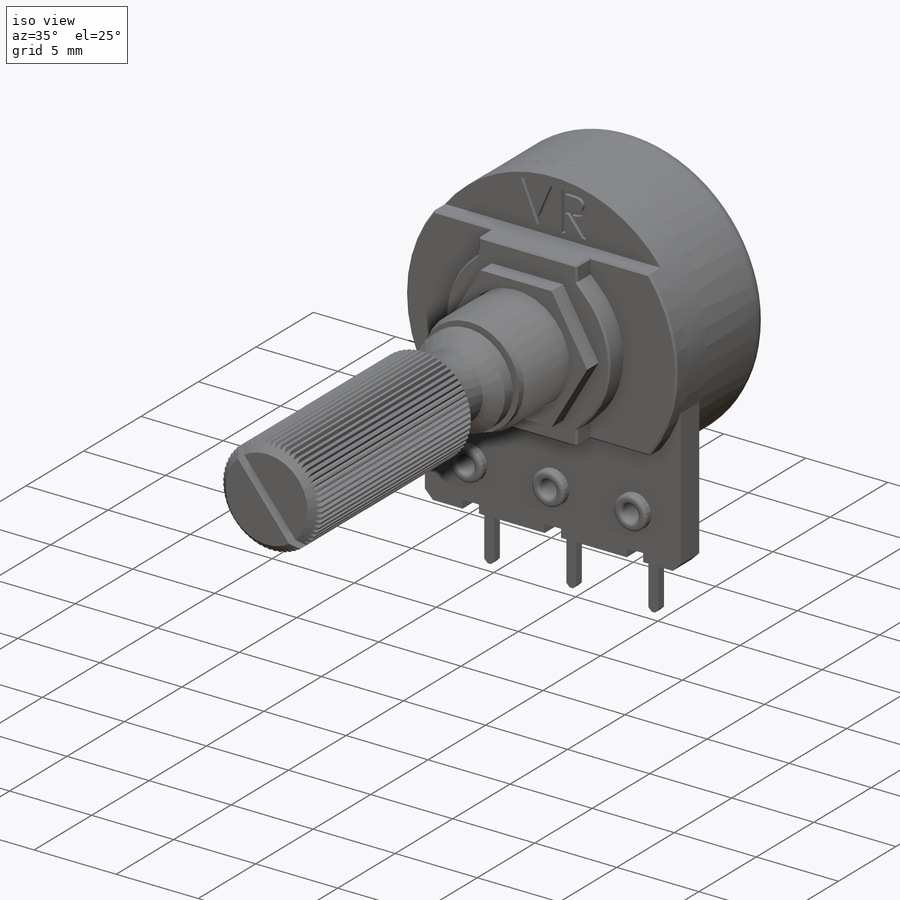
[diagram: iso view]
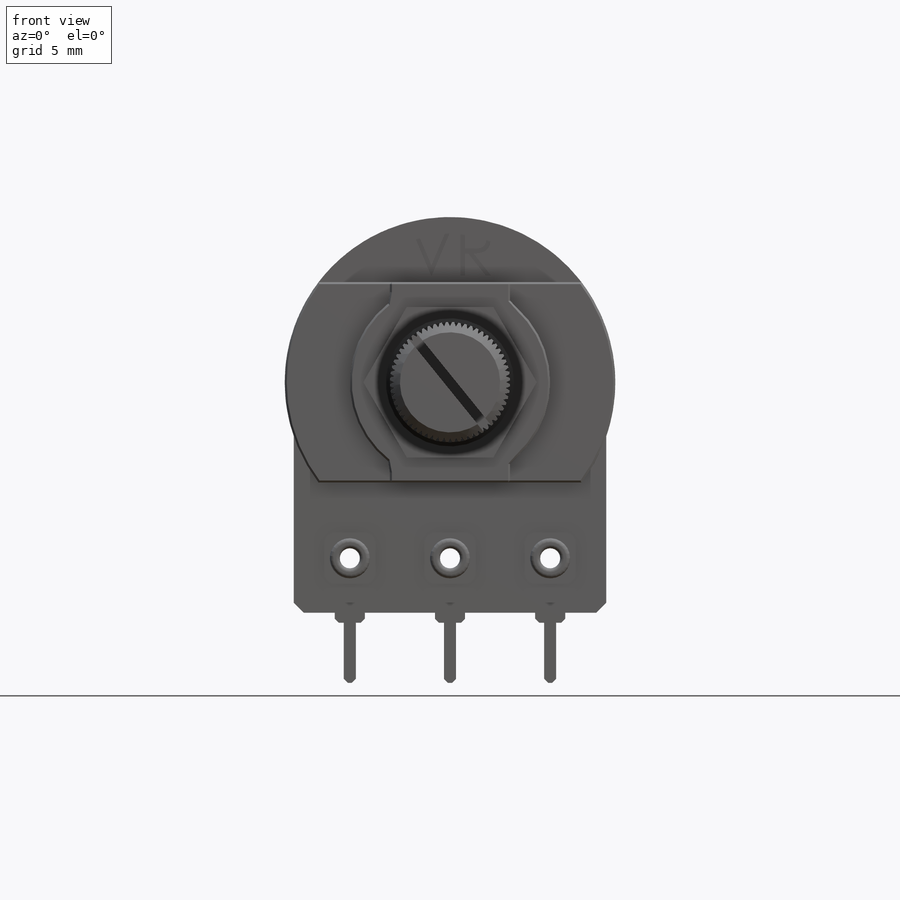
[diagram: front view]
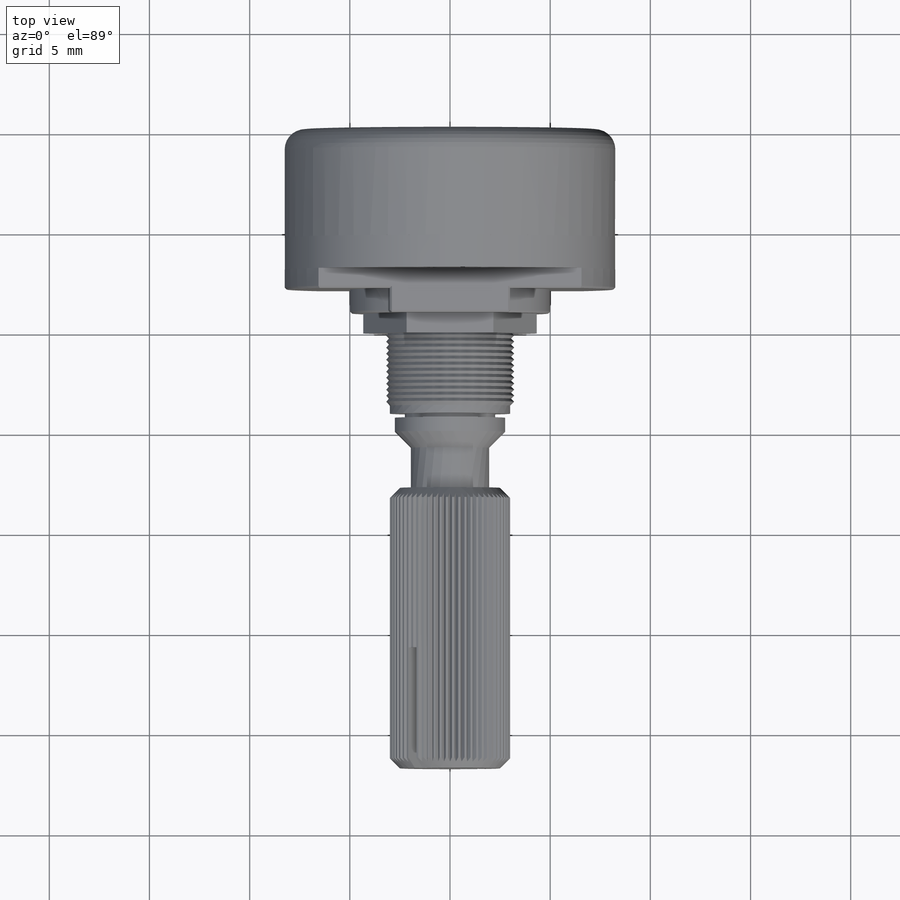
[diagram: top view]
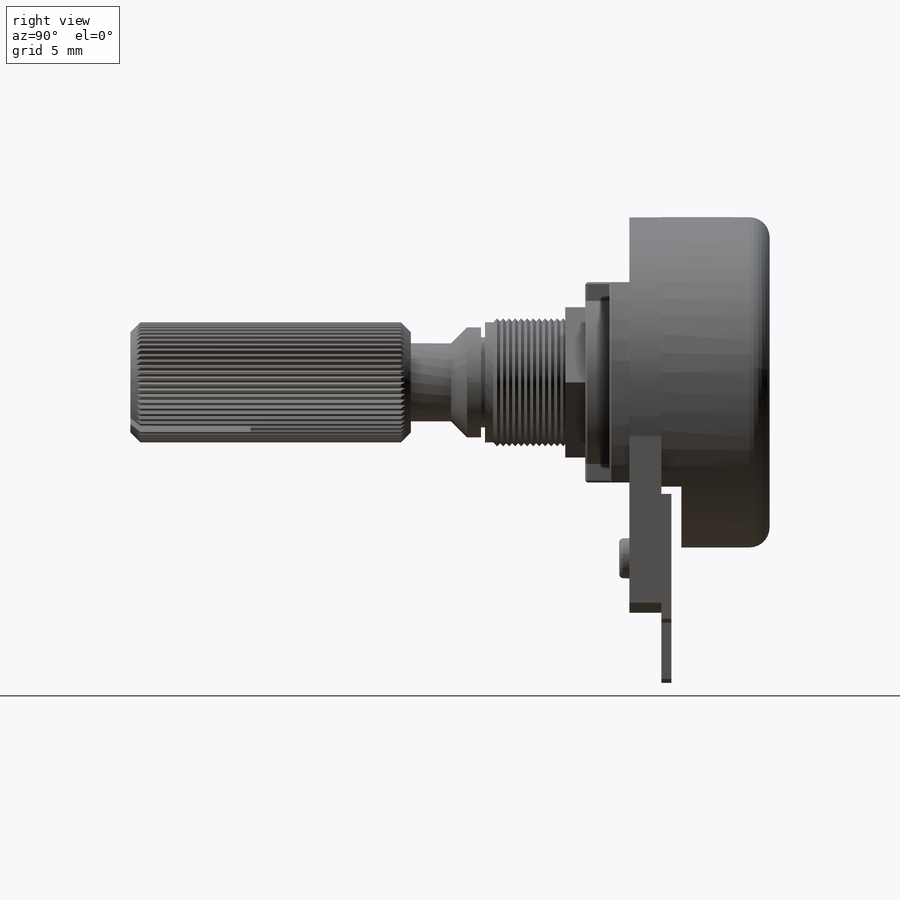
[diagram: right view]
SOLIDWORKS PART (.sldprt)
format: sldprt  version: not decoded by parser v0  size: 1,059,840 bytes
history: native  units: mm
features: sketch x23, extrude x13, cut_extrude x8, chamfer x7, fillet x2, material x1, shell x1, pattern_circular x1, revolve x1, pattern_linear x1 (+12 scaffold rows collapsed)
feature tree (70):
  scaffold x12  (default folders/planes/origin — collapsed)
  material  "Material <not specified>"
  sketch  "Sketch1"  dims[D1=16.5mm]
  extrude  "Boss-Extrude1"  Depth=5.4mm
  fillet  "Fillet1"  Radius=1mm
  shell  "Shell1"  Thickness=0.3mm
  sketch  "Sketch2"  dims[D1=11.5mm D2=7.8mm D3=7.8mm]
  extrude  "Boss-Extrude2"  Depth=1.6mm
  chamfer  "Chamfer1"  Distance=0.5mm Angle=45deg
  sketch  "Sketch3"  dims[D1=10.0mm]
  extrude  "Boss-Extrude3"  Depth=1mm
  sketch  "Sketch4"  dims[D1=6.0mm]
  extrude  "Boss-Extrude4"  Depth=1.2mm
  sketch  "Sketch5"  dims[D1=6.0mm]
  extrude  "Boss-Extrude5"  Depth=5mm
  sketch  "Sketch6"  dims[D1=4.6mm]
  cut_extrude  "Cut-Extrude1"  Depth=6mm
  sketch  "Sketch7"  dims[D1=4.5mm]
  extrude  "Boss-Extrude6"  Depth=6.2mm
  sketch  "Sketch8"  dims[D1=5.5mm]
  extrude  "Boss-Extrude7"  Depth=1.5mm
  chamfer  "Chamfer2"  Distance=0.8mm Angle=45deg
  sketch  "Sketch9"
  extrude  "Boss-Extrude8"  Depth=2mm
  sketch  "Sketch10"  dims[D1=6.0mm]
  extrude  "Boss-Extrude9"  Depth=14mm
  chamfer  "Chamfer3"  Distance=0.5mm Angle=45deg
  sketch  "Sketch11"
  sketch  "Sketch12"  dims[D1=0.1mm D2=0.1mm D3=0.2mm]
  cut_extrude  "Cut-Extrude3"  [1 undecoded]
  pattern_circular  "CirPattern1"  Count=60 Angle=6deg
  sketch  "Sketch13"
  sketch  "Sketch14"  dims[c1.D1=2.0mm c1.D2=1.0mm c1.D3=1.0mm c2.D2=5.0mm c2.D3=5.0mm]
  extrude  "Boss-Extrude10"  Depth=0.5mm
  sketch  "Sketch15"  dims[D1=1.0mm]
  cut_extrude  "Cut-Extrude5"  [1 undecoded]
  fillet  "Fillet3"  Radius=0.2mm
  sketch  "Sketch16"  dims[D1=1.0mm D2=0.5mm]
  cut_extrude  "Cut-Extrude6"  [1 undecoded]
  sketch  "Sketch18"  dims[D1=1.0mm]
  cut_extrude  "Cut-Extrude7"  Depth=10mm
  sketch  "Sketch21"  dims[D1=0.2mm D2=0.2mm D3=0.2mm]
  revolve  "Revolve1"  Angle=360deg
  pattern_linear  "LPattern1"  Count1=15 Count2=1 Spacing1=0.3mm Spacing2=50mm
  sketch  "Sketch22"  dims[D2=6.5mm D1=7.5mm]
  extrude  "Boss-Extrude14"  Depth=1mm
  sketch  "Sketch24"  dims[D1=1.5mm D2=0.5mm]
  extrude  "Boss-Extrude18"  Depth=0.5mm
  sketch  "Sketch25"  dims[D1=0.6mm]
  extrude  "Boss-Extrude19"  Depth=3mm
  chamfer  "Chamfer4"  Distance=0.2mm Angle=45deg
  chamfer  "Chamfer5"  Distance=0.2mm Angle=45deg
  chamfer  "Chamfer6"  Distance=0.2mm Angle=45deg
  sketch  "Sketch26"
  cut_extrude  "Cut-Extrude9"  [1 undecoded]
  chamfer  "Chamfer7"  Distance=0.1mm Angle=45deg
  cut_extrude  "Cut-Extrude10"  Depth=0.2mm
  sketch  "Sketch28"  dims[D1=0.5mm D2=0.5mm]
  cut_extrude  "Cut-Extrude11"  Depth=6mm
decode coverage: 49 of 57 modeling features carry decoded parameters
note: 4 parameter values undecoded
summary: no parameter record found for 4 features
note: suppression state not decoded; provenance and decode notes live in map.json
